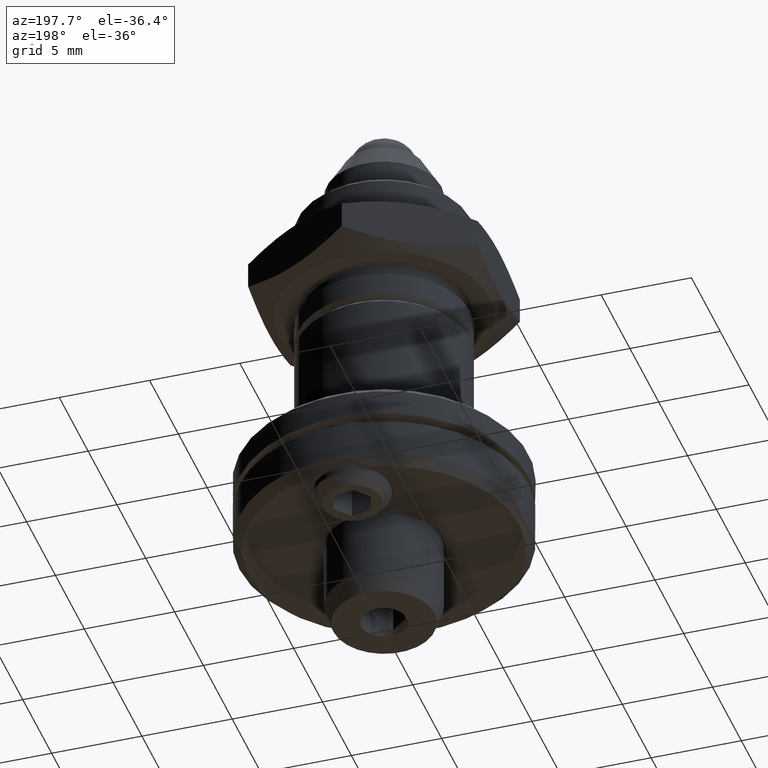
[diagram: clean part render]
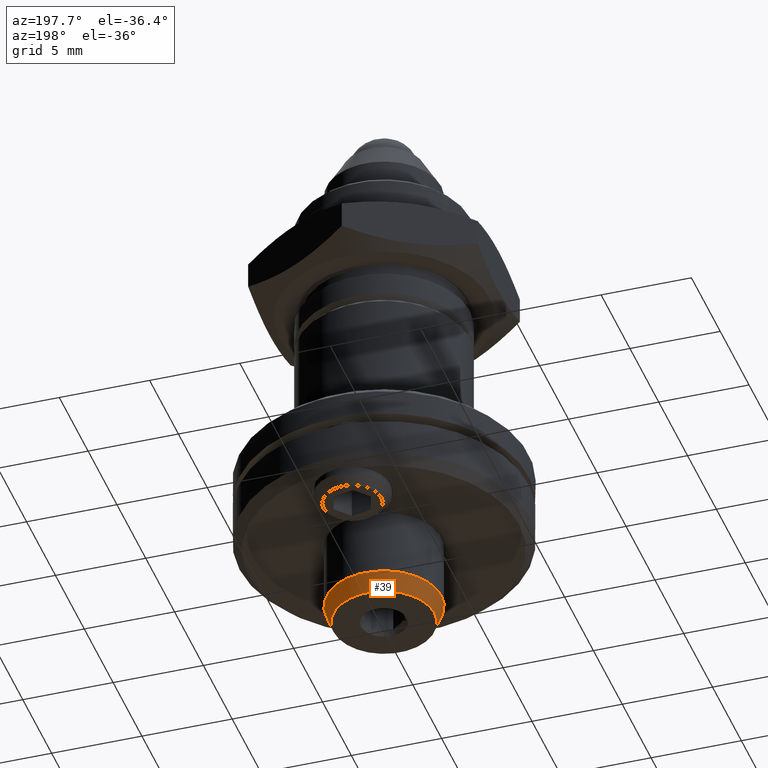
[diagram: same view with one face highlighted and labeled with its STEP entity id]
A machine part, auxiliary view. The second image highlights one B-rep face of the part: STEP entity #39.
In plain terms, the highlighted conical surface has half-angle 20 deg.
Its self-contained STEP definition (entity closure, byte-faithful):
#38 = VERTEX_POINT ( 'NONE', #426 ) ;
#39 = ADVANCED_FACE ( 'NONE', ( #1504, #1121 ), #367, .T. ) ;
#160 = AXIS2_PLACEMENT_3D ( 'NONE', #1115, #685, #1896 ) ;
#199 = CIRCLE ( 'NONE', #160, 3.174999999999999822 ) ;
#334 = EDGE_LOOP ( 'NONE', ( #2002 ) ) ;
#367 = CONICAL_SURFACE ( 'NONE', #1384, 3.175000000022080382, 0.3490658503974916060 ) ;
#426 = CARTESIAN_POINT ( 'NONE',  ( 2.794000000064041256, 0.000000000000000000, -31.24199999996335464 ) ) ;
#438 = DIRECTION ( 'NONE',  ( 0.000000000000000000, -0.000000000000000000, 1.000000000000000000 ) ) ;
#453 = CARTESIAN_POINT ( 'NONE',  ( 0.000000000000000000, 0.000000000000000000, -31.24199999996335464 ) ) ;
#612 = VERTEX_POINT ( 'NONE', #2396 ) ;
#671 = DIRECTION ( 'NONE',  ( 1.000000000000000000, 0.000000000000000000, 0.000000000000000000 ) ) ;
#685 = DIRECTION ( 'NONE',  ( 0.000000000000000000, 0.000000000000000000, 1.000000000000000000 ) ) ;
#709 = EDGE_CURVE ( 'NONE', #38, #38, #2315, .T. ) ;
#887 = DIRECTION ( 'NONE',  ( 0.000000000000000000, -0.000000000000000000, 1.000000000000000000 ) ) ;
#1115 = CARTESIAN_POINT ( 'NONE',  ( 0.000000000000000000, 0.000000000000000000, -30.19521110318319757 ) ) ;
#1121 = FACE_BOUND ( 'NONE', #1881, .T. ) ;
#1181 = ORIENTED_EDGE ( 'NONE', *, *, #709, .T. ) ;
#1384 = AXIS2_PLACEMENT_3D ( 'NONE', #1903, #887, #2265 ) ;
#1504 = FACE_OUTER_BOUND ( 'NONE', #334, .T. ) ;
#1530 = AXIS2_PLACEMENT_3D ( 'NONE', #453, #438, #671 ) ;
#1679 = EDGE_CURVE ( 'NONE', #612, #612, #199, .T. ) ;
#1881 = EDGE_LOOP ( 'NONE', ( #1181 ) ) ;
#1896 = DIRECTION ( 'NONE',  ( 1.000000000000000000, 0.000000000000000000, 0.000000000000000000 ) ) ;
#1903 = CARTESIAN_POINT ( 'NONE',  ( 0.000000000000000000, 0.000000000000000000, -30.19521110326195412 ) ) ;
#2002 = ORIENTED_EDGE ( 'NONE', *, *, #1679, .F. ) ;
#2265 = DIRECTION ( 'NONE',  ( 1.000000000000000000, 0.000000000000000000, 0.000000000000000000 ) ) ;
#2315 = CIRCLE ( 'NONE', #1530, 2.794000000064041256 ) ;
#2396 = CARTESIAN_POINT ( 'NONE',  ( 3.174999999999999822, 0.000000000000000000, -30.19521110318319757 ) ) ;